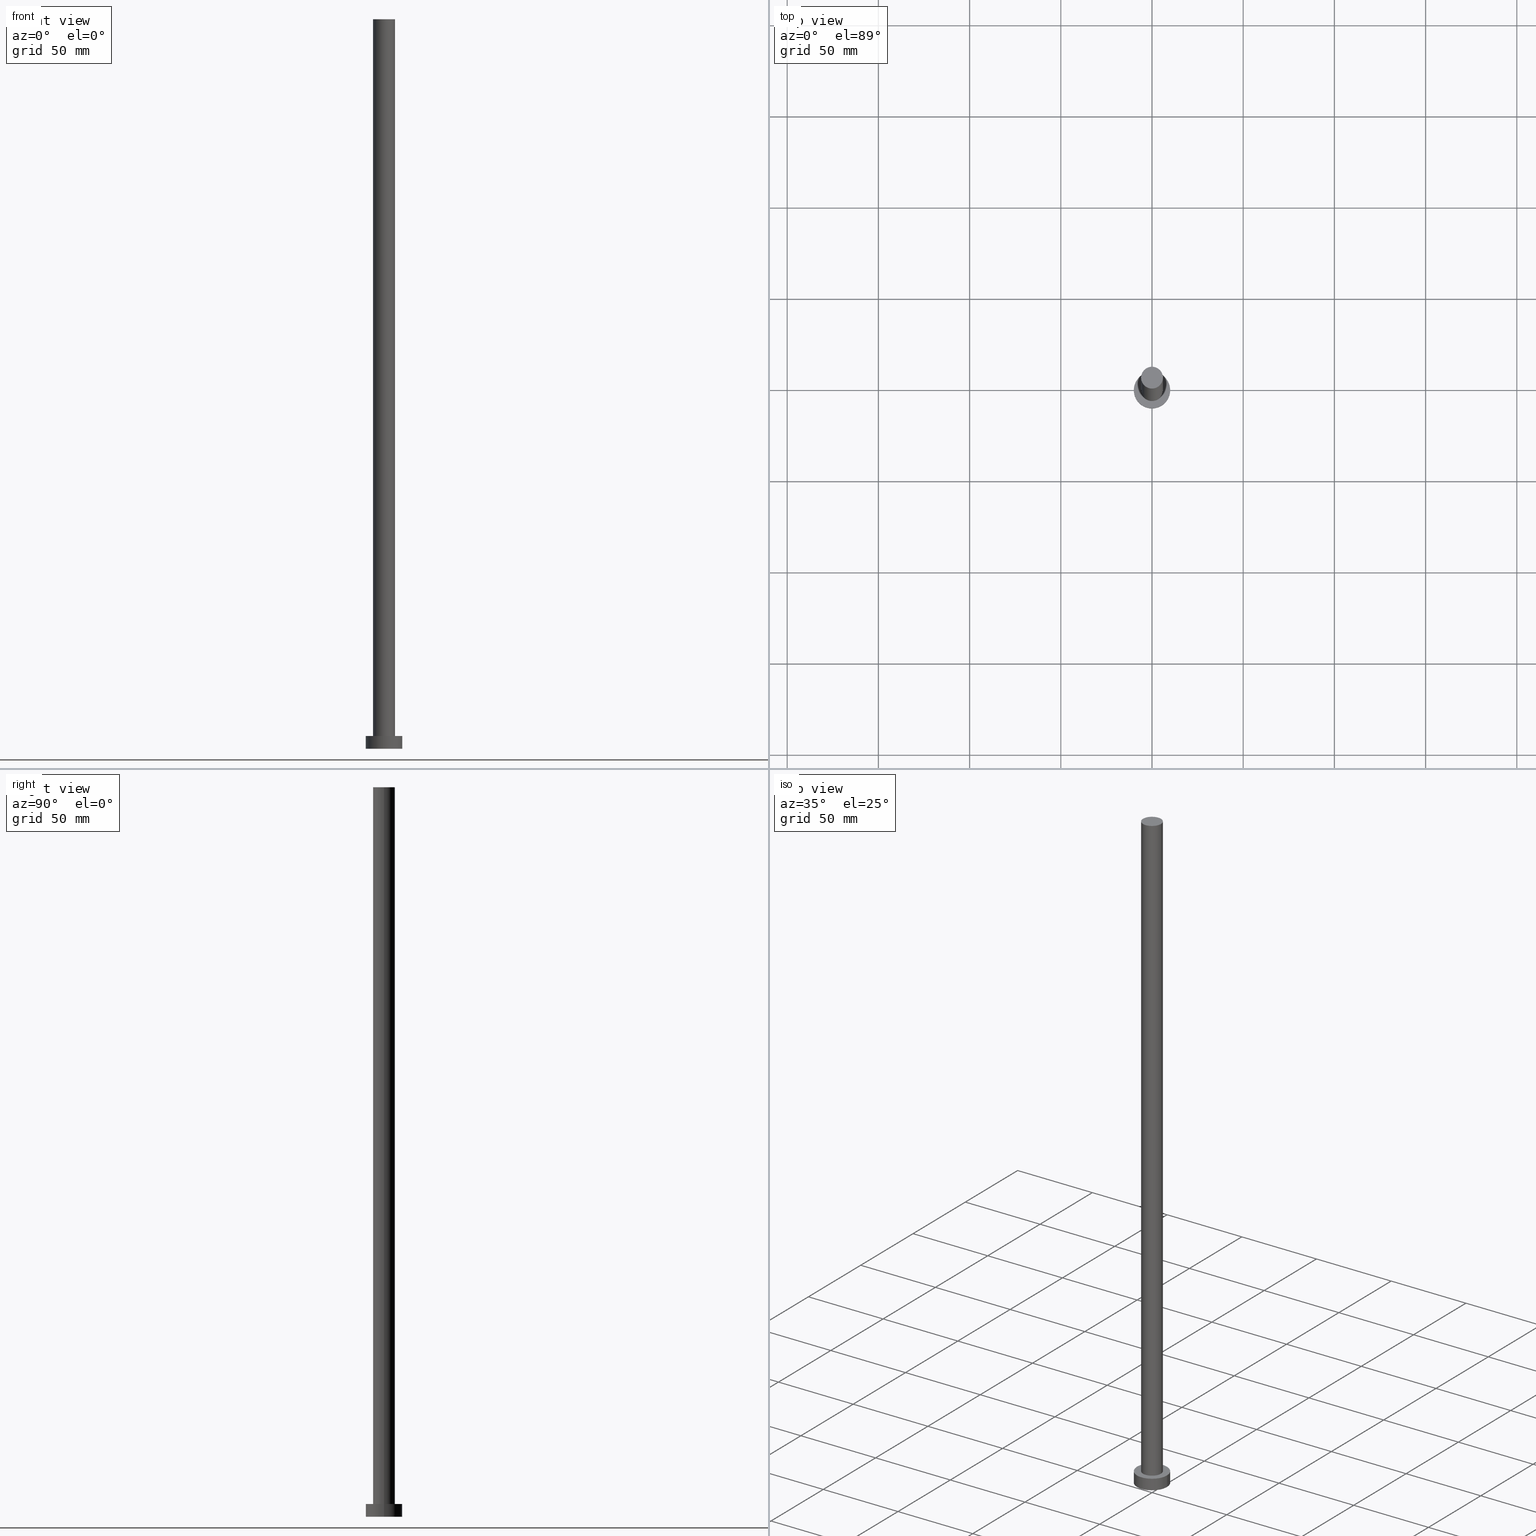
[diagram: canonical four-view strip — front | top / right | iso, engineering-drawing reading convention]
A machine part, canonical four-view strip (front | top / right | iso — engineering-drawing reading convention). The complete STEP part file that produces these views, byte-faithful:
ISO-10303-21;
HEADER;
FILE_DESCRIPTION (( 'STEP AP203' ),
    '1' );
FILE_NAME ('1a9e.STEP',
    '2023-02-13T10:19:49',
    ( '' ),
    ( '' ),
    'SwSTEP 2.0',
    'SolidWorks 2019',
    '' );
FILE_SCHEMA (( 'CONFIG_CONTROL_DESIGN' ));
ENDSEC;

DATA;
#1 = CARTESIAN_POINT ( 'NONE',  ( -6.000000000000000888, 0.000000000000000000, 400.0000000000000000 ) ) ;
#2 = APPROVAL_PERSON_ORGANIZATION ( #115, #244, #60 ) ;
#3 = FACE_OUTER_BOUND ( 'NONE', #83, .T. ) ;
#4 = EDGE_CURVE ( 'NONE', #134, #116, #108, .T. ) ;
#5 = ORIENTED_EDGE ( 'NONE', *, *, #32, .T. ) ;
#6 = DIRECTION ( 'NONE',  ( 0.000000000000000000, 0.000000000000000000, 1.000000000000000000 ) ) ;
#7 = CIRCLE ( 'NONE', #73, 6.000000000000000888 ) ;
#8 = DIRECTION ( 'NONE',  ( 0.000000000000000000, 0.000000000000000000, 1.000000000000000000 ) ) ;
#9 = APPLICATION_PROTOCOL_DEFINITION ( 'international standard', 'config_control_design', 1994, #21 ) ;
#10 = VECTOR ( 'NONE', #12, 1000.000000000000000 ) ;
#11 = CARTESIAN_POINT ( 'NONE',  ( 0.000000000000000000, 0.000000000000000000, 7.000000000000000000 ) ) ;
#12 = DIRECTION ( 'NONE',  ( -0.000000000000000000, -0.000000000000000000, -1.000000000000000000 ) ) ;
#13 = EDGE_CURVE ( 'NONE', #39, #174, #123, .T. ) ;
#14 = ORIENTED_EDGE ( 'NONE', *, *, #70, .F. ) ;
#15 = PERSON_AND_ORGANIZATION ( #86, #46 ) ;
#16 = AXIS2_PLACEMENT_3D ( 'NONE', #180, #6, #89 ) ;
#17 = ORIENTED_EDGE ( 'NONE', *, *, #173, .F. ) ;
#18 = EDGE_CURVE ( 'NONE', #174, #195, #54, .T. ) ;
#19 = DATE_TIME_ROLE ( 'classification_date' ) ;
#20 = ORIENTED_EDGE ( 'NONE', *, *, #32, .F. ) ;
#21 = APPLICATION_CONTEXT ( 'configuration controlled 3d designs of mechanical parts and assemblies' ) ;
#22 = DIRECTION ( 'NONE',  ( -0.000000000000000000, -0.000000000000000000, -1.000000000000000000 ) ) ;
#23 = CYLINDRICAL_SURFACE ( 'NONE', #97, 6.000000000000000888 ) ;
#24 = ADVANCED_FACE ( 'NONE', ( #25, #63 ), #45, .T. ) ;
#25 = FACE_BOUND ( 'NONE', #170, .T. ) ;
#26 = VERTEX_POINT ( 'NONE', #88 ) ;
#27 = CLOSED_SHELL ( 'NONE', ( #47, #133, #242, #24, #147, #104, #206 ) ) ;
#28 = CARTESIAN_POINT ( 'NONE',  ( 6.000000000000000888, 7.347880794884120722E-16, 7.000000000000000000 ) ) ;
#29 = CARTESIAN_POINT ( 'NONE',  ( -10.00000000000000000, 0.000000000000000000, 0.000000000000000000 ) ) ;
#30 = AXIS2_PLACEMENT_3D ( 'NONE', #246, #8, #224 ) ;
#31 = DIRECTION ( 'NONE',  ( 0.000000000000000000, 0.000000000000000000, 1.000000000000000000 ) ) ;
#32 = EDGE_CURVE ( 'NONE', #26, #136, #203, .T. ) ;
#33 = PRODUCT_DEFINITION_FORMATION_WITH_SPECIFIED_SOURCE ( 'LIBOVOLN�', '', #72, .NOT_KNOWN. ) ;
#34 = DIRECTION ( 'NONE',  ( -1.000000000000000000, 0.000000000000000000, 0.000000000000000000 ) ) ;
#35 = PRODUCT_DEFINITION_SHAPE ( 'NONE', 'NONE',  #198 ) ;
#36 = ORIENTED_EDGE ( 'NONE', *, *, #173, .T. ) ;
#37 = LOCAL_TIME ( 11, 19, 49.00000000000000000, #81 ) ;
#38 = PERSON_AND_ORGANIZATION_ROLE ( 'classification_officer' ) ;
#39 = VERTEX_POINT ( 'NONE', #241 ) ;
#40 = COORDINATED_UNIVERSAL_TIME_OFFSET ( 1, 0, .AHEAD. ) ;
#41 = DIRECTION ( 'NONE',  ( -1.000000000000000000, 0.000000000000000000, 0.000000000000000000 ) ) ;
#42 = CYLINDRICAL_SURFACE ( 'NONE', #126, 6.000000000000000888 ) ;
#43 = EDGE_LOOP ( 'NONE', ( #237, #113 ) ) ;
#44 = DIRECTION ( 'NONE',  ( 1.000000000000000000, 0.000000000000000000, 0.000000000000000000 ) ) ;
#45 = PLANE ( 'NONE',  #59 ) ;
#46 = ORGANIZATION ( 'NEUR�EN�', 'NEUR�EN�', '' ) ;
#47 = ADVANCED_FACE ( 'NONE', ( #3 ), #42, .T. ) ;
#48 =( NAMED_UNIT ( * ) SI_UNIT ( $, .STERADIAN. ) SOLID_ANGLE_UNIT ( ) );
#49 = ADVANCED_BREP_SHAPE_REPRESENTATION ( '1a9e', ( #227, #100 ), #223 ) ;
#50 = CARTESIAN_POINT ( 'NONE',  ( 6.000000000000000888, 7.347880794884120722E-16, 400.0000000000000000 ) ) ;
#51 = EDGE_CURVE ( 'NONE', #216, #39, #239, .T. ) ;
#52 = APPROVAL ( #249, 'NEUR�EN�' ) ;
#53 = PERSON_AND_ORGANIZATION ( #86, #46 ) ;
#54 = CIRCLE ( 'NONE', #30, 6.000000000000000888 ) ;
#55 = ORIENTED_EDGE ( 'NONE', *, *, #51, .F. ) ;
#56 = ORIENTED_EDGE ( 'NONE', *, *, #13, .F. ) ;
#57 = DATE_AND_TIME ( #106, #130 ) ;
#58 = COORDINATED_UNIVERSAL_TIME_OFFSET ( 1, 0, .AHEAD. ) ;
#59 = AXIS2_PLACEMENT_3D ( 'NONE', #245, #157, #141 ) ;
#60 = APPROVAL_ROLE ( '' ) ;
#61 = ORIENTED_EDGE ( 'NONE', *, *, #70, .T. ) ;
#62 = ORIENTED_EDGE ( 'NONE', *, *, #18, .T. ) ;
#63 = FACE_OUTER_BOUND ( 'NONE', #222, .T. ) ;
#64 = COORDINATED_UNIVERSAL_TIME_OFFSET ( 1, 0, .AHEAD. ) ;
#65 = DIRECTION ( 'NONE',  ( -0.000000000000000000, -0.000000000000000000, -1.000000000000000000 ) ) ;
#66 = CC_DESIGN_APPROVAL ( #244, ( #33 ) ) ;
#67 = EDGE_LOOP ( 'NONE', ( #20, #36, #61, #145 ) ) ;
#68 = FACE_OUTER_BOUND ( 'NONE', #77, .T. ) ;
#69 = CARTESIAN_POINT ( 'NONE',  ( 0.000000000000000000, 0.000000000000000000, 7.000000000000000000 ) ) ;
#70 = EDGE_CURVE ( 'NONE', #116, #134, #155, .T. ) ;
#71 = DIRECTION ( 'NONE',  ( 0.000000000000000000, 0.000000000000000000, 1.000000000000000000 ) ) ;
#72 = PRODUCT ( '1a9e', '1a9e', '', ( #76 ) ) ;
#73 = AXIS2_PLACEMENT_3D ( 'NONE', #207, #31, #165 ) ;
#74 = APPROVAL_DATE_TIME ( #117, #209 ) ;
#75 = PERSON_AND_ORGANIZATION_ROLE ( 'creator' ) ;
#76 = MECHANICAL_CONTEXT ( 'NONE', #21, 'mechanical' ) ;
#77 = EDGE_LOOP ( 'NONE', ( #251, #14 ) ) ;
#78 = DIRECTION ( 'NONE',  ( 0.000000000000000000, 0.000000000000000000, 1.000000000000000000 ) ) ;
#79 = CC_DESIGN_DATE_AND_TIME_ASSIGNMENT ( #194, #19, ( #196 ) ) ;
#80 = ORIENTED_EDGE ( 'NONE', *, *, #4, .T. ) ;
#81 = COORDINATED_UNIVERSAL_TIME_OFFSET ( 1, 0, .AHEAD. ) ;
#82 = CARTESIAN_POINT ( 'NONE',  ( 0.000000000000000000, 0.000000000000000000, 0.000000000000000000 ) ) ;
#83 = EDGE_LOOP ( 'NONE', ( #55, #168, #234, #56 ) ) ;
#84 = AXIS2_PLACEMENT_3D ( 'NONE', #197, #22, #151 ) ;
#85 = DIRECTION ( 'NONE',  ( 0.000000000000000000, 0.000000000000000000, 1.000000000000000000 ) ) ;
#86 = PERSON ( 'NEUR�EN�', 'NEUR�EN�', 'NEUR�EN�', ('NEUR�EN�'), ('NEUR�EN�'), ('NEUR�EN�') ) ;
#87 = CARTESIAN_POINT ( 'NONE',  ( 0.000000000000000000, 0.000000000000000000, 400.0000000000000000 ) ) ;
#88 = CARTESIAN_POINT ( 'NONE',  ( 10.00000000000000000, 1.224646799147353256E-15, 7.000000000000000000 ) ) ;
#89 = DIRECTION ( 'NONE',  ( 1.000000000000000000, 0.000000000000000000, 0.000000000000000000 ) ) ;
#90 = DIRECTION ( 'NONE',  ( 0.000000000000000000, 0.000000000000000000, 1.000000000000000000 ) ) ;
#91 = CARTESIAN_POINT ( 'NONE',  ( 0.000000000000000000, 0.000000000000000000, 0.000000000000000000 ) ) ;
#92 = LINE ( 'NONE', #247, #226 ) ;
#93 = PERSON_AND_ORGANIZATION ( #86, #46 ) ;
#94 = PRODUCT_RELATED_PRODUCT_CATEGORY ( 'detail', '', ( #72 ) ) ;
#95 = DATE_AND_TIME ( #114, #171 ) ;
#96 = ORIENTED_EDGE ( 'NONE', *, *, #13, .T. ) ;
#97 = AXIS2_PLACEMENT_3D ( 'NONE', #87, #65, #41 ) ;
#98 = APPROVAL_STATUS ( 'not_yet_approved' ) ;
#99 = DIRECTION ( 'NONE',  ( 0.000000000000000000, 0.000000000000000000, 1.000000000000000000 ) ) ;
#100 = AXIS2_PLACEMENT_3D ( 'NONE', #82, #78, #169 ) ;
#101 = CARTESIAN_POINT ( 'NONE',  ( 0.000000000000000000, 0.000000000000000000, 0.000000000000000000 ) ) ;
#102 = DIRECTION ( 'NONE',  ( 1.000000000000000000, 0.000000000000000000, 0.000000000000000000 ) ) ;
#103 = DIRECTION ( 'NONE',  ( -0.000000000000000000, -0.000000000000000000, -1.000000000000000000 ) ) ;
#104 = ADVANCED_FACE ( 'NONE', ( #199 ), #23, .T. ) ;
#105 = CARTESIAN_POINT ( 'NONE',  ( 0.000000000000000000, 0.000000000000000000, 400.0000000000000000 ) ) ;
#106 = CALENDAR_DATE ( 2023, 13, 2 ) ;
#107 = LINE ( 'NONE', #50, #10 ) ;
#108 = CIRCLE ( 'NONE', #177, 10.00000000000000000 ) ;
#109 = CARTESIAN_POINT ( 'NONE',  ( 10.00000000000000000, 1.224646799147353256E-15, 7.000000000000000000 ) ) ;
#110 = APPLICATION_PROTOCOL_DEFINITION ( 'international standard', 'config_control_design', 1994, #254 ) ;
#111 = DESIGN_CONTEXT ( 'detailed design', #254, 'design' ) ;
#112 = DIRECTION ( 'NONE',  ( 0.000000000000000000, 0.000000000000000000, 1.000000000000000000 ) ) ;
#113 = ORIENTED_EDGE ( 'NONE', *, *, #51, .T. ) ;
#114 = CALENDAR_DATE ( 2023, 13, 2 ) ;
#115 = PERSON_AND_ORGANIZATION ( #86, #46 ) ;
#116 = VERTEX_POINT ( 'NONE', #202 ) ;
#117 = DATE_AND_TIME ( #250, #37 ) ;
#118 = VECTOR ( 'NONE', #187, 1000.000000000000000 ) ;
#119 = CYLINDRICAL_SURFACE ( 'NONE', #84, 10.00000000000000000 ) ;
#120 = AXIS2_PLACEMENT_3D ( 'NONE', #179, #181, #102 ) ;
#121 = EDGE_CURVE ( 'NONE', #39, #216, #208, .T. ) ;
#122 = CARTESIAN_POINT ( 'NONE',  ( 0.000000000000000000, 0.000000000000000000, 400.0000000000000000 ) ) ;
#123 = LINE ( 'NONE', #1, #252 ) ;
#124 = ORIENTED_EDGE ( 'NONE', *, *, #121, .F. ) ;
#125 = DIRECTION ( 'NONE',  ( 0.000000000000000000, 0.000000000000000000, 1.000000000000000000 ) ) ;
#126 = AXIS2_PLACEMENT_3D ( 'NONE', #122, #158, #243 ) ;
#127 = FACE_OUTER_BOUND ( 'NONE', #43, .T. ) ;
#128 = CARTESIAN_POINT ( 'NONE',  ( -6.000000000000000888, 0.000000000000000000, 7.000000000000000000 ) ) ;
#129 = CYLINDRICAL_SURFACE ( 'NONE', #153, 10.00000000000000000 ) ;
#130 = LOCAL_TIME ( 11, 19, 49.00000000000000000, #64 ) ;
#131 = PERSON_AND_ORGANIZATION ( #86, #46 ) ;
#132 = PERSON_AND_ORGANIZATION ( #86, #46 ) ;
#133 = ADVANCED_FACE ( 'NONE', ( #161 ), #119, .T. ) ;
#134 = VERTEX_POINT ( 'NONE', #29 ) ;
#135 = APPROVAL_DATE_TIME ( #57, #52 ) ;
#136 = VERTEX_POINT ( 'NONE', #211 ) ;
#137 = CC_DESIGN_PERSON_AND_ORGANIZATION_ASSIGNMENT ( #132, #75, ( #198 ) ) ;
#138 = CALENDAR_DATE ( 2023, 13, 2 ) ;
#139 =( NAMED_UNIT ( * ) PLANE_ANGLE_UNIT ( ) SI_UNIT ( $, .RADIAN. ) );
#140 = ORIENTED_EDGE ( 'NONE', *, *, #219, .F. ) ;
#141 = DIRECTION ( 'NONE',  ( 1.000000000000000000, 0.000000000000000000, -0.000000000000000000 ) ) ;
#142 = AXIS2_PLACEMENT_3D ( 'NONE', #204, #85, #220 ) ;
#143 = ORIENTED_EDGE ( 'NONE', *, *, #167, .F. ) ;
#144 = LOCAL_TIME ( 11, 19, 49.00000000000000000, #40 ) ;
#145 = ORIENTED_EDGE ( 'NONE', *, *, #238, .F. ) ;
#146 = EDGE_LOOP ( 'NONE', ( #17, #140, #156, #80 ) ) ;
#147 = ADVANCED_FACE ( 'NONE', ( #68 ), #229, .F. ) ;
#148 = LINE ( 'NONE', #109, #118 ) ;
#149 = DIRECTION ( 'NONE',  ( -0.000000000000000000, -0.000000000000000000, -1.000000000000000000 ) ) ;
#150 = CC_DESIGN_DATE_AND_TIME_ASSIGNMENT ( #175, #217, ( #198 ) ) ;
#151 = DIRECTION ( 'NONE',  ( -1.000000000000000000, 0.000000000000000000, 0.000000000000000000 ) ) ;
#152 = COORDINATED_UNIVERSAL_TIME_OFFSET ( 1, 0, .AHEAD. ) ;
#153 = AXIS2_PLACEMENT_3D ( 'NONE', #69, #149, #34 ) ;
#154 = APPROVAL_DATE_TIME ( #95, #244 ) ;
#155 = CIRCLE ( 'NONE', #120, 10.00000000000000000 ) ;
#156 = ORIENTED_EDGE ( 'NONE', *, *, #238, .T. ) ;
#157 = DIRECTION ( 'NONE',  ( 0.000000000000000000, 0.000000000000000000, 1.000000000000000000 ) ) ;
#158 = DIRECTION ( 'NONE',  ( -0.000000000000000000, -0.000000000000000000, -1.000000000000000000 ) ) ;
#159 = ORIENTED_EDGE ( 'NONE', *, *, #219, .T. ) ;
#160 = CC_DESIGN_APPROVAL ( #209, ( #196 ) ) ;
#161 = FACE_OUTER_BOUND ( 'NONE', #67, .T. ) ;
#162 = UNCERTAINTY_MEASURE_WITH_UNIT (LENGTH_MEASURE( 1.000000000000000082E-05 ), #201, 'distance_accuracy_value', 'NONE');
#163 = CC_DESIGN_PERSON_AND_ORGANIZATION_ASSIGNMENT ( #131, #210, ( #72 ) ) ;
#164 = DIRECTION ( 'NONE',  ( 1.000000000000000000, 0.000000000000000000, 0.000000000000000000 ) ) ;
#165 = DIRECTION ( 'NONE',  ( 1.000000000000000000, 0.000000000000000000, 0.000000000000000000 ) ) ;
#166 = PLANE ( 'NONE',  #214 ) ;
#167 = EDGE_CURVE ( 'NONE', #216, #195, #107, .T. ) ;
#168 = ORIENTED_EDGE ( 'NONE', *, *, #167, .T. ) ;
#169 = DIRECTION ( 'NONE',  ( 1.000000000000000000, 0.000000000000000000, 0.000000000000000000 ) ) ;
#170 = EDGE_LOOP ( 'NONE', ( #236, #191 ) ) ;
#171 = LOCAL_TIME ( 11, 19, 49.00000000000000000, #152 ) ;
#172 = APPROVAL_PERSON_ORGANIZATION ( #189, #209, #255 ) ;
#173 = EDGE_CURVE ( 'NONE', #26, #116, #148, .T. ) ;
#174 = VERTEX_POINT ( 'NONE', #128 ) ;
#175 = DATE_AND_TIME ( #233, #144 ) ;
#176 = EDGE_LOOP ( 'NONE', ( #143, #124, #96, #62 ) ) ;
#177 = AXIS2_PLACEMENT_3D ( 'NONE', #101, #99, #178 ) ;
#178 = DIRECTION ( 'NONE',  ( 1.000000000000000000, 0.000000000000000000, 0.000000000000000000 ) ) ;
#179 = CARTESIAN_POINT ( 'NONE',  ( 0.000000000000000000, 0.000000000000000000, 0.000000000000000000 ) ) ;
#180 = CARTESIAN_POINT ( 'NONE',  ( 0.000000000000000000, 0.000000000000000000, 400.0000000000000000 ) ) ;
#181 = DIRECTION ( 'NONE',  ( 0.000000000000000000, 0.000000000000000000, 1.000000000000000000 ) ) ;
#182 = CARTESIAN_POINT ( 'NONE',  ( 6.000000000000000888, 7.347880794884120722E-16, 400.0000000000000000 ) ) ;
#183 = DIRECTION ( 'NONE',  ( 1.000000000000000000, 0.000000000000000000, -0.000000000000000000 ) ) ;
#184 = CC_DESIGN_PERSON_AND_ORGANIZATION_ASSIGNMENT ( #53, #235, ( #33 ) ) ;
#185 = CIRCLE ( 'NONE', #218, 10.00000000000000000 ) ;
#186 = CC_DESIGN_SECURITY_CLASSIFICATION ( #196, ( #33 ) ) ;
#187 = DIRECTION ( 'NONE',  ( -0.000000000000000000, -0.000000000000000000, -1.000000000000000000 ) ) ;
#188 = DIRECTION ( 'NONE',  ( 1.000000000000000000, 0.000000000000000000, -0.000000000000000000 ) ) ;
#189 = PERSON_AND_ORGANIZATION ( #86, #46 ) ;
#190 = CC_DESIGN_APPROVAL ( #52, ( #198 ) ) ;
#191 = ORIENTED_EDGE ( 'NONE', *, *, #213, .F. ) ;
#192 = PERSON_AND_ORGANIZATION ( #86, #46 ) ;
#193 = CC_DESIGN_PERSON_AND_ORGANIZATION_ASSIGNMENT ( #192, #38, ( #196 ) ) ;
#194 = DATE_AND_TIME ( #138, #205 ) ;
#195 = VERTEX_POINT ( 'NONE', #28 ) ;
#196 = SECURITY_CLASSIFICATION ( '', '', #212 ) ;
#197 = CARTESIAN_POINT ( 'NONE',  ( 0.000000000000000000, 0.000000000000000000, 7.000000000000000000 ) ) ;
#198 = PRODUCT_DEFINITION ( 'NEZN�M�', '', #33, #111 ) ;
#199 = FACE_OUTER_BOUND ( 'NONE', #176, .T. ) ;
#200 = APPROVAL_ROLE ( '' ) ;
#201 =( LENGTH_UNIT ( ) NAMED_UNIT ( * ) SI_UNIT ( .MILLI., .METRE. ) );
#202 = CARTESIAN_POINT ( 'NONE',  ( 10.00000000000000000, 1.224646799147353256E-15, 0.000000000000000000 ) ) ;
#203 = CIRCLE ( 'NONE', #232, 10.00000000000000000 ) ;
#204 = CARTESIAN_POINT ( 'NONE',  ( 0.000000000000000000, 0.000000000000000000, 400.0000000000000000 ) ) ;
#205 = LOCAL_TIME ( 11, 19, 49.00000000000000000, #58 ) ;
#206 = ADVANCED_FACE ( 'NONE', ( #127 ), #166, .T. ) ;
#207 = CARTESIAN_POINT ( 'NONE',  ( 0.000000000000000000, 0.000000000000000000, 7.000000000000000000 ) ) ;
#208 = CIRCLE ( 'NONE', #16, 6.000000000000000888 ) ;
#209 = APPROVAL ( #98, 'NEUR�EN�' ) ;
#210 = PERSON_AND_ORGANIZATION_ROLE ( 'design_owner' ) ;
#211 = CARTESIAN_POINT ( 'NONE',  ( -10.00000000000000000, 0.000000000000000000, 7.000000000000000000 ) ) ;
#212 = SECURITY_CLASSIFICATION_LEVEL ( 'unclassified' ) ;
#213 = EDGE_CURVE ( 'NONE', #195, #174, #7, .T. ) ;
#214 = AXIS2_PLACEMENT_3D ( 'NONE', #105, #71, #183 ) ;
#215 = PERSON_AND_ORGANIZATION_ROLE ( 'creator' ) ;
#216 = VERTEX_POINT ( 'NONE', #182 ) ;
#217 = DATE_TIME_ROLE ( 'creation_date' ) ;
#218 = AXIS2_PLACEMENT_3D ( 'NONE', #11, #90, #164 ) ;
#219 = EDGE_CURVE ( 'NONE', #136, #26, #185, .T. ) ;
#220 = DIRECTION ( 'NONE',  ( 1.000000000000000000, 0.000000000000000000, 0.000000000000000000 ) ) ;
#221 = CARTESIAN_POINT ( 'NONE',  ( 0.000000000000000000, 0.000000000000000000, 7.000000000000000000 ) ) ;
#222 = EDGE_LOOP ( 'NONE', ( #159, #5 ) ) ;
#223 =( GEOMETRIC_REPRESENTATION_CONTEXT ( 3 ) GLOBAL_UNCERTAINTY_ASSIGNED_CONTEXT ( ( #162 ) ) GLOBAL_UNIT_ASSIGNED_CONTEXT ( ( #201, #139, #48 ) ) REPRESENTATION_CONTEXT ( 'NONE', 'WORKASPACE' ) );
#224 = DIRECTION ( 'NONE',  ( 1.000000000000000000, 0.000000000000000000, 0.000000000000000000 ) ) ;
#225 = CC_DESIGN_PERSON_AND_ORGANIZATION_ASSIGNMENT ( #15, #215, ( #33 ) ) ;
#226 = VECTOR ( 'NONE', #248, 1000.000000000000000 ) ;
#227 = MANIFOLD_SOLID_BREP ( 'P�idat vysunut�m3', #27 ) ;
#228 = FACE_OUTER_BOUND ( 'NONE', #146, .T. ) ;
#229 = PLANE ( 'NONE',  #230 ) ;
#230 = AXIS2_PLACEMENT_3D ( 'NONE', #91, #112, #188 ) ;
#231 = SHAPE_DEFINITION_REPRESENTATION ( #35, #49 ) ;
#232 = AXIS2_PLACEMENT_3D ( 'NONE', #221, #125, #44 ) ;
#233 = CALENDAR_DATE ( 2023, 13, 2 ) ;
#234 = ORIENTED_EDGE ( 'NONE', *, *, #213, .T. ) ;
#235 = PERSON_AND_ORGANIZATION_ROLE ( 'design_supplier' ) ;
#236 = ORIENTED_EDGE ( 'NONE', *, *, #18, .F. ) ;
#237 = ORIENTED_EDGE ( 'NONE', *, *, #121, .T. ) ;
#238 = EDGE_CURVE ( 'NONE', #136, #134, #92, .T. ) ;
#239 = CIRCLE ( 'NONE', #142, 6.000000000000000888 ) ;
#240 = APPROVAL_STATUS ( 'not_yet_approved' ) ;
#241 = CARTESIAN_POINT ( 'NONE',  ( -6.000000000000000888, 0.000000000000000000, 400.0000000000000000 ) ) ;
#242 = ADVANCED_FACE ( 'NONE', ( #228 ), #129, .T. ) ;
#243 = DIRECTION ( 'NONE',  ( -1.000000000000000000, 0.000000000000000000, 0.000000000000000000 ) ) ;
#244 = APPROVAL ( #240, 'NEUR�EN�' ) ;
#245 = CARTESIAN_POINT ( 'NONE',  ( 0.000000000000000000, 0.000000000000000000, 7.000000000000000000 ) ) ;
#246 = CARTESIAN_POINT ( 'NONE',  ( 0.000000000000000000, 0.000000000000000000, 7.000000000000000000 ) ) ;
#247 = CARTESIAN_POINT ( 'NONE',  ( -10.00000000000000000, 0.000000000000000000, 7.000000000000000000 ) ) ;
#248 = DIRECTION ( 'NONE',  ( -0.000000000000000000, -0.000000000000000000, -1.000000000000000000 ) ) ;
#249 = APPROVAL_STATUS ( 'not_yet_approved' ) ;
#250 = CALENDAR_DATE ( 2023, 13, 2 ) ;
#251 = ORIENTED_EDGE ( 'NONE', *, *, #4, .F. ) ;
#252 = VECTOR ( 'NONE', #103, 1000.000000000000000 ) ;
#253 = APPROVAL_PERSON_ORGANIZATION ( #93, #52, #200 ) ;
#254 = APPLICATION_CONTEXT ( 'configuration controlled 3d designs of mechanical parts and assemblies' ) ;
#255 = APPROVAL_ROLE ( '' ) ;
ENDSEC;
END-ISO-10303-21;
